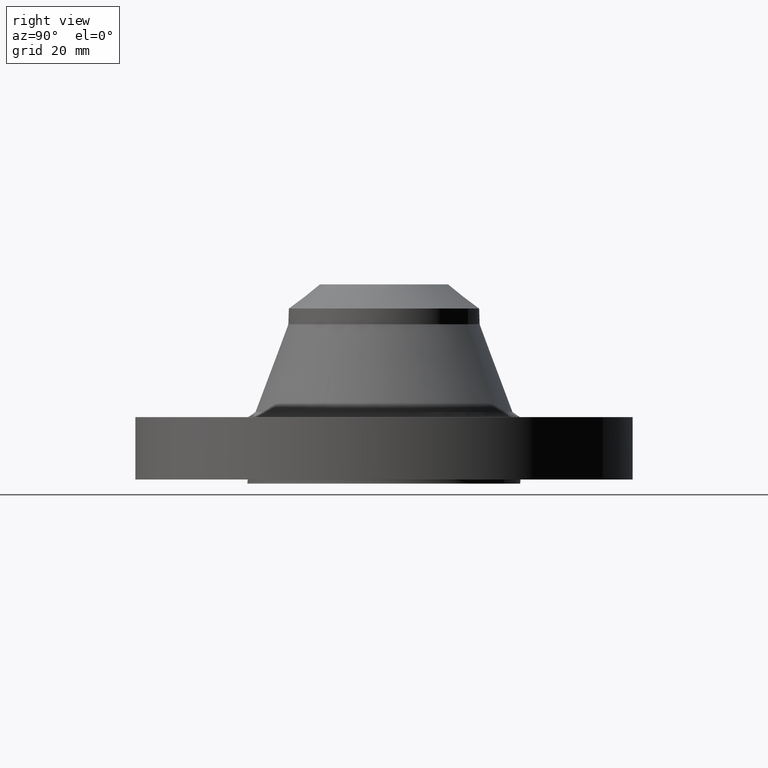
[diagram: clean part render]
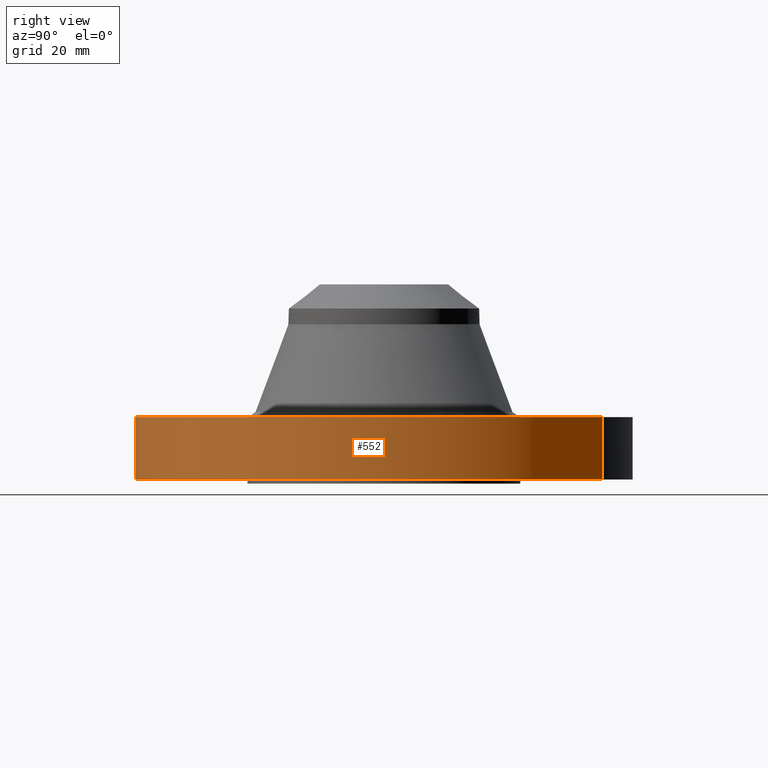
[diagram: same view with one face highlighted and labeled with its STEP entity id]
A machine part, right view. The second image highlights one B-rep face of the part: STEP entity #552.
In plain terms, the highlighted cylindrical surface (partial cylindrical patch) has radius 95.25 mm, axis along (0, 0, -1).
Its self-contained STEP definition (entity closure, byte-faithful):
#152=AXIS2_PLACEMENT_3D('Circle Axis2P3D',#150,#151,$) ;
#322=AXIS2_PLACEMENT_3D('Circle Axis2P3D',#320,#321,$) ;
#544=AXIS2_PLACEMENT_3D('Cylinder Axis2P3D',#541,#542,#543) ;
#145=CARTESIAN_POINT('Vertex',(-1.79784576978,-3.29093460711,0.)) ;
#147=CARTESIAN_POINT('Vertex',(1.79784576978,3.29093460711,-5.60321692806E-013)) ;
#150=CARTESIAN_POINT('Axis2P3D Location',(1.28121485424E-011,2.12099804037E-012,0.)) ;
#320=CARTESIAN_POINT('Axis2P3D Location',(1.67844740731E-015,1.00007491352E-011,0.940000000004)) ;
#324=CARTESIAN_POINT('Vertex',(1.79784576977,3.29093460711,0.940000000006)) ;
#326=CARTESIAN_POINT('Vertex',(-1.79784576978,-3.29093460711,0.940000000006)) ;
#517=CARTESIAN_POINT('Line Origine',(-1.79784576978,-3.29093460711,0.470000000003)) ;
#522=CARTESIAN_POINT('Line Origine',(1.79784576978,3.29093460711,0.470000000003)) ;
#541=CARTESIAN_POINT('Axis2P3D Location',(0.,0.,1.43875000001)) ;
#151=DIRECTION('Axis2P3D Direction',(0.,0.,-0.0393700787402)) ;
#321=DIRECTION('Axis2P3D Direction',(0.,0.,-0.0393700787402)) ;
#518=DIRECTION('Vector Direction',(0.,0.,-0.0393700787402)) ;
#523=DIRECTION('Vector Direction',(0.,0.,-0.0393700787402)) ;
#542=DIRECTION('Axis2P3D Direction',(0.,0.,-0.0393700787402)) ;
#543=DIRECTION('Axis2P3D XDirection',(0.0188750212049,0.0345504945626,0.)) ;
#519=VECTOR('Line Direction',#518,0.0393700787402) ;
#524=VECTOR('Line Direction',#523,0.0393700787402) ;
#547=ORIENTED_EDGE('',*,*,#154,.F.) ;
#548=ORIENTED_EDGE('',*,*,#526,.T.) ;
#549=ORIENTED_EDGE('',*,*,#328,.T.) ;
#550=ORIENTED_EDGE('',*,*,#521,.F.) ;
#552=ADVANCED_FACE('PartBody',(#551),#545,.T.) ;
#153=CIRCLE('generated circle',#152,3.75000000002) ;
#323=CIRCLE('generated circle',#322,3.75000000005) ;
#545=CYLINDRICAL_SURFACE('generated cylinder',#544,3.75000000002) ;
#154=EDGE_CURVE('',#148,#146,#153,.T.) ;
#328=EDGE_CURVE('',#325,#327,#323,.T.) ;
#521=EDGE_CURVE('',#146,#327,#520,.F.) ;
#526=EDGE_CURVE('',#148,#325,#525,.F.) ;
#546=EDGE_LOOP('',(#547,#548,#549,#550)) ;
#551=FACE_OUTER_BOUND('',#546,.T.) ;
#520=LINE('Line',#517,#519) ;
#525=LINE('Line',#522,#524) ;
#146=VERTEX_POINT('',#145) ;
#148=VERTEX_POINT('',#147) ;
#325=VERTEX_POINT('',#324) ;
#327=VERTEX_POINT('',#326) ;